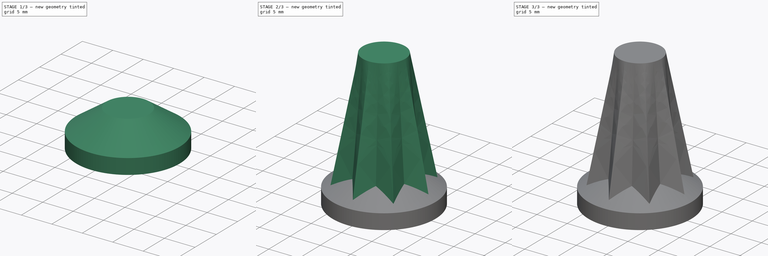
[diagram: build sequence overview — one tinted view per stage of 3, left to right]
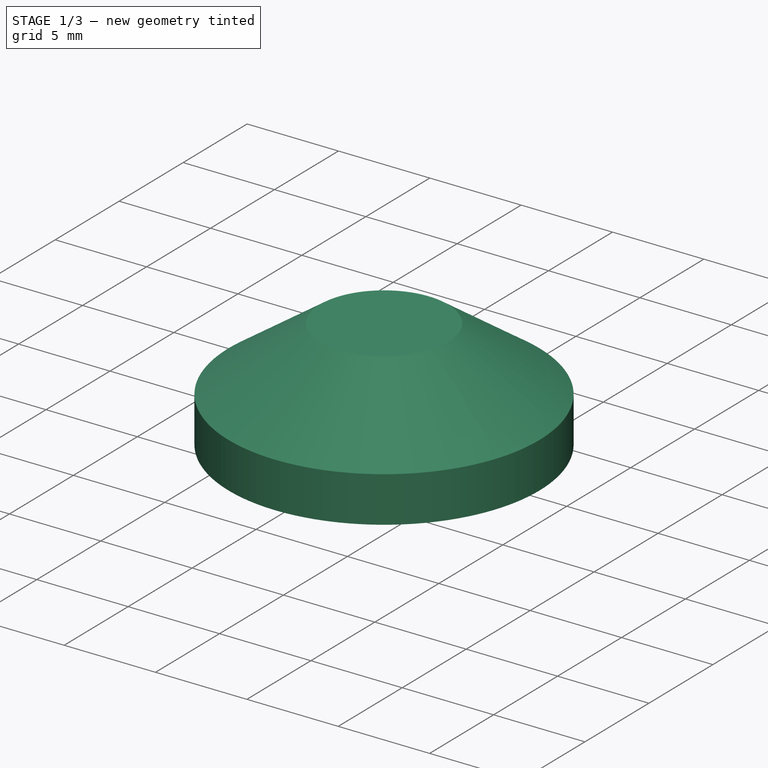
[diagram: stage 1 of 3 — iso view after this stage's code; geometry added in this stage tinted green]
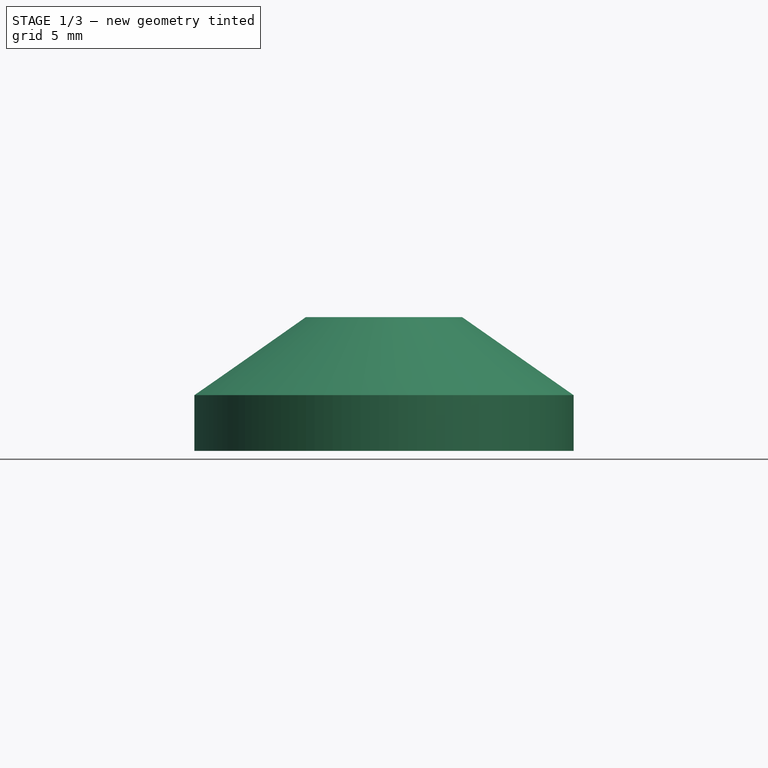
[diagram: stage 1 of 3 — front view after this stage's code; geometry added in this stage tinted green]
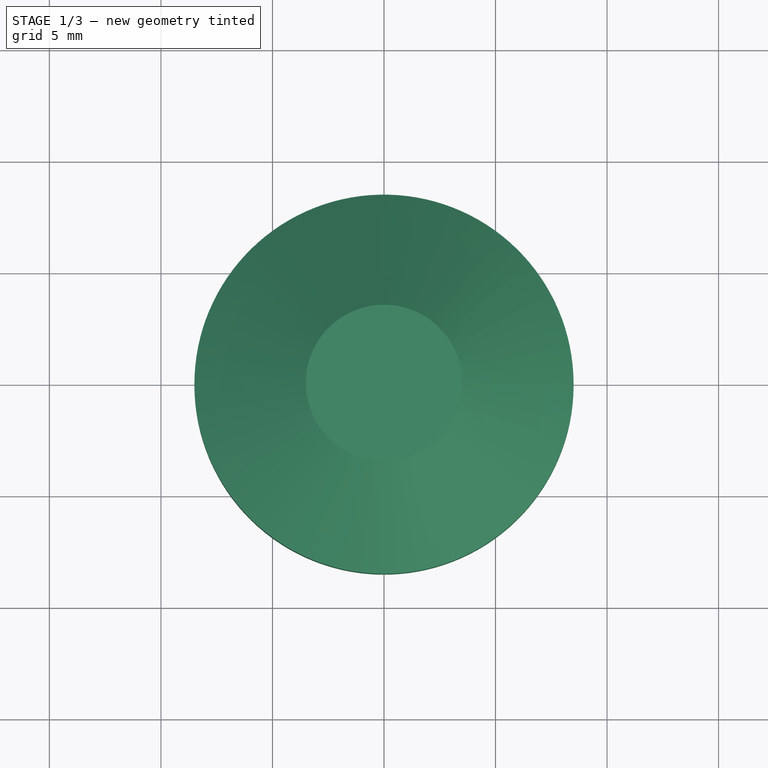
[diagram: stage 1 of 3 — top view after this stage's code; geometry added in this stage tinted green]
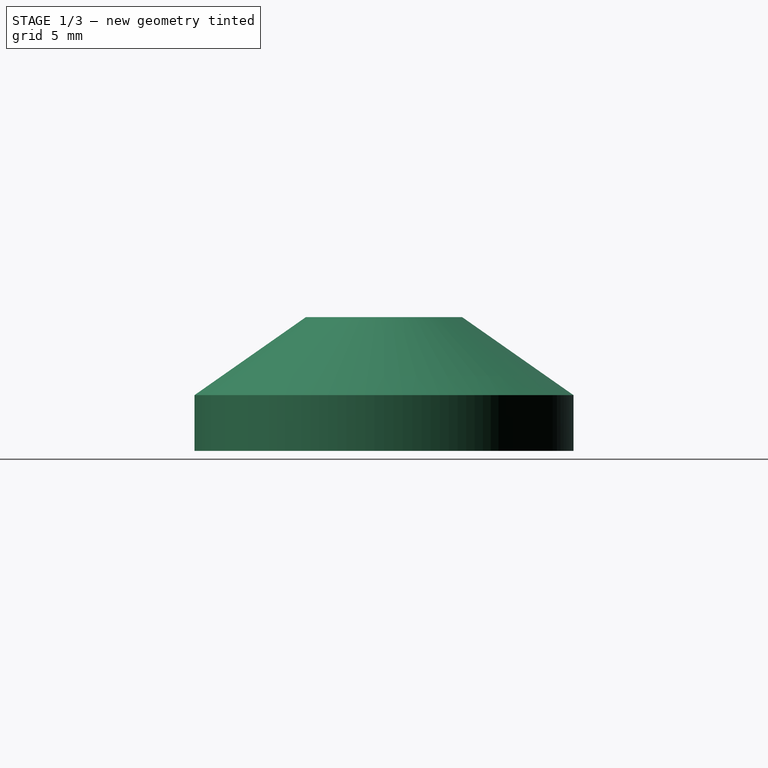
[diagram: stage 1 of 3 — right view after this stage's code; geometry added in this stage tinted green]
FCSTD DOCUMENT  (FreeCAD 1.0R39285 (Git))
Label: Knob
License: All rights reserved
LicenseURL: https://en.wikipedia.org/wiki/All_rights_reserved
objects: Sketcher::SketchObject×6, PartDesign::Pocket×3, Spreadsheet::Sheet×1, PartDesign::Plane×1, PartDesign::Pad×1, PartDesign::Chamfer×1, PartDesign::AdditiveLoft×1, PartDesign::Body×1
note: 32 computed .brp shape members not serialized (recipe doc carries the construction recipe); baked Part::Feature solids carry a one-line shape summary decoded from their .brp

FEATURE [Spreadsheet::Sheet] Parameters
  cells = A1='Parameter; B1='Value; C1='Fromula; D1='Tolerance; E1='Comment; A2='d0; B2(d0_)=11; C2='11mm; A3='d1; B3(d1_)=7; C3='7mm; A4='d10; B4(d10_)=0; C4='0°; A5='d11; B5(d11_)=0; C5='0; A6='d12; B6(d12_)=90; C6='90°; A7='d13; B7(d13_)=0; C7='0; A8='d14; B8(d14_)=90; C8='90°; A9='d15; B9(d15_)=6.2; C9='6.2mm; A10='d16; B10(d16_)=1.7; C10='1.7mm; A11='d17; B11(d17_)=20.5; C11='20.5mm; A12='d18; B12(d18_)=0; C12='0°; A13='OuterDiameter; B13(d19_)=17; C13='17mm; A14='d2; B14(d2_)=45; C14='45°; A15='d20; B15(d20_)=6; C15='6mm; A16='d21; B16(d21_)=0; C16='0°; A17='d22; B17(d22_)=3.52; C17='3.52mm; A18='d23; B18(d23_)=2; C18='2mm; A19='d24; B19(d24_)=35; C19='35°; A20='d25; B20(d25_)=12.7; C20='12.7mm; A21='d26; B21(d26_)=3; C21='3mm; A22='d27; B22(d27_)=0; C22='0°; A23='d28; B23(d28_)=6.1; C23='6.1mm; A24='d29; B24(d29_)=0; C24='0°; A25='d3; B25(d3_)=8; C25='8; A26='d4; B26(d4_)=8; C26='8; A27='d5; B27(d5_)=360; C27='360°; A28='d7; B28(d7_)=22.5; C28='22.5mm; A29='d8; B29(d8_)=7; C29='7mm; A30='d9; B30(d9_)=0.01; C30='0.01mm
FEATURE [Sketcher::SketchObject] Sketch1
  ArcFitTolerance = 1e-06
  AttachmentSupport = -> [XY_Plane]
  FullyConstrained = true
  MakeInternals = false
  MapMode = 5
  expr: .Constraints.d1 = (Parameters.d19_ - 1) / 2
  sketch-geometry (18):
    g0: LineSegment StartX=-2.10476 StartY=5.08134 StartZ=0 EndX=0 EndY=8 EndZ=0
    g1: LineSegment StartX=0 StartY=8 StartZ=0 EndX=2.10476 EndY=5.08134 EndZ=0
    g2: Circle [constr] CenterX=0 CenterY=0 CenterZ=0 NormalX=0 NormalY=0 NormalZ=1 AngleXU=0 Radius=5.5
    g3: LineSegment StartX=-5.08134 StartY=2.10476 StartZ=0 EndX=-5.65685 EndY=5.65685 EndZ=0
    g4: LineSegment StartX=-5.65685 StartY=5.65685 StartZ=0 EndX=-2.10476 EndY=5.08134 EndZ=0
    g5: LineSegment StartX=-5.08134 StartY=-2.10476 StartZ=0 EndX=-8 EndY=1.3e-15 EndZ=0
    g6: LineSegment StartX=-8 StartY=1.3e-15 StartZ=0 EndX=-5.08134 EndY=2.10476 EndZ=0
    g7: LineSegment StartX=-2.10476 StartY=-5.08134 StartZ=0 EndX=-5.65685 EndY=-5.65685 EndZ=0
    g8: LineSegment StartX=-5.65685 StartY=-5.65685 StartZ=0 EndX=-5.08134 EndY=-2.10476 EndZ=0
    g9: LineSegment StartX=2.10476 StartY=-5.08134 StartZ=0 EndX=-9e-16 EndY=-8 EndZ=0
    g10: LineSegment StartX=-9e-16 StartY=-8 StartZ=0 EndX=-2.10476 EndY=-5.08134 EndZ=0
    g11: LineSegment StartX=5.08134 StartY=-2.10476 StartZ=0 EndX=5.65685 EndY=-5.65685 EndZ=0
    g12: LineSegment StartX=5.65685 StartY=-5.65685 StartZ=0 EndX=2.10476 EndY=-5.08134 EndZ=0
    g13: LineSegment StartX=5.08134 StartY=2.10476 StartZ=0 EndX=8 EndY=-3.1e-15 EndZ=0
    g14: LineSegment StartX=8 StartY=-3.1e-15 StartZ=0 EndX=5.08134 EndY=-2.10476 EndZ=0
    g15: LineSegment StartX=2.10476 StartY=5.08134 StartZ=0 EndX=5.65685 EndY=5.65685 EndZ=0
    g16: LineSegment StartX=5.65685 StartY=5.65685 StartZ=0 EndX=5.08134 EndY=2.10476 EndZ=0
    g17: Circle [constr] CenterX=0 CenterY=0 CenterZ=0 NormalX=0 NormalY=0 NormalZ=1 AngleXU=0 Radius=8
  constraints (52):
    c: Equal(g1,g0)
    c: Diameter(g2) = 11  'd0'
    c: Distance(g-1,g0) = 8  'd1'
    c: Coincident(g2,g-1)
    c: PointOnObject(g0,g2)
    c: PointOnObject(g13,g2)
    c: PointOnObject(g11,g2)
    c: PointOnObject(g9,g2)
    c: PointOnObject(g7,g2)
    c: PointOnObject(g5,g2)
    c: PointOnObject(g3,g2)
    c: Coincident(g0,g1)
    c: PointOnObject(g1,g2)
    c: Coincident(g15,g1)
    c: Coincident(g15,g16)
    c: Coincident(g13,g16)
    c: Coincident(g14,g13)
    c: Coincident(g14,g11)
    c: Coincident(g11,g12)
    c: Coincident(g12,g9)
    c: Coincident(g10,g9)
    c: Coincident(g10,g7)
    c: Coincident(g7,g8)
    c: Coincident(g8,g5)
    c: Coincident(g5,g6)
    c: Coincident(g6,g3)
    c: Coincident(g3,g4)
    c: Coincident(g4,g0)
    c: Equal(g1,g15)
    c: Equal(g15,g16)
    c: Equal(g16,g13)
    c: Equal(g13,g14)
    c: Equal(g14,g11)
    c: Equal(g12,g9)
    c: Equal(g9,g10)
    c: Equal(g10,g7)
    c: Equal(g8,g7)
    c: Equal(g8,g5)
    c: Equal(g5,g6)
    c: Equal(g6,g3)
    c: Equal(g3,g4)
    c: Equal(g12,g11)
    c: Coincident(g17,g2)
    c: PointOnObject(g7,g17)
    c: PointOnObject(g5,g17)
    c: PointOnObject(g3,g17)
    c: PointOnObject(g0,g17)
    c: PointOnObject(g15,g17)
    c: PointOnObject(g13,g17)
    c: PointOnObject(g11,g17)
    c: PointOnObject(g9,g17)
    c: Vertical(g0,g2)
FEATURE [Sketcher::SketchObject] Sketch3
  ArcFitTolerance = 1e-06
  FullyConstrained = true
  MakeInternals = false
  Placement = pos=(0,0,0) rot=(0,1,0;3.14159rad)
  expr: .Constraints.d16 = Parameters.d16_
  sketch-geometry (2):
    g0: ArcOfCircle CenterX=0 CenterY=0 CenterZ=0 NormalX=0 NormalY=0 NormalZ=1 AngleXU=0 Radius=3.1 StartAngle=5.70275 EndAngle=10.0052
    g1: LineSegment StartX=2.5923 StartY=-1.7 StartZ=0 EndX=-2.5923 EndY=-1.7 EndZ=0
  constraints (6):
    c: Horizontal(g1)
    c: Distance(g-1,g1) = 1.7  'd16'
    c: Coincident(g0,g-1)
    c: Diameter(g0) = 6.2
    c: Coincident(g0,g1)
    c: Coincident(g0,g1)
FEATURE [Sketcher::SketchObject] Sketch5
  ArcFitTolerance = 1e-06
  FullyConstrained = true
  MakeInternals = false
  Placement = pos=(0,0,0) rot=(0,1,0;3.14159rad)
  sketch-geometry (1):
    g0: Circle CenterX=0 CenterY=0 CenterZ=0 NormalX=0 NormalY=0 NormalZ=1 AngleXU=0 Radius=6.35
  constraints (2):
    c: Diameter(g0) = 12.7
    c: Coincident(g0,g-1)
FEATURE [PartDesign::Plane] DatumPlane
  AttachmentOffset = pos=(0,0,22.5) rot=(0,0,1;0rad)
  AttachmentSupport = -> [Sketch1]
  Length = 60
  MapMode = 2
  Placement = pos=(0,0,22.5) rot=(0,0,1;0rad)
  ResizeMode = 0
  Width = 60
FEATURE [Sketcher::SketchObject] Sketch007
  ArcFitTolerance = 1e-06
  FullyConstrained = true
  MakeInternals = false
  Placement = pos=(0,0,22.5) rot=(0,0,1;0rad)
  sketch-geometry (1):
    g0: Circle CenterX=0 CenterY=0 CenterZ=0 NormalX=0 NormalY=0 NormalZ=1 AngleXU=0 Radius=3.5
  constraints (2):
    c: Diameter(g0) = 7  'd8'
    c: Coincident(g0,g-1)
FEATURE [Sketcher::SketchObject] Sketch
  ArcFitTolerance = 1e-06
  AttachmentSupport = -> [XY_Plane]
  FullyConstrained = true
  MakeInternals = false
  MapMode = 5
  expr: Constraints[1] = Parameters.d19_
  sketch-geometry (1):
    g0: Circle CenterX=0 CenterY=0 CenterZ=0 NormalX=0 NormalY=0 NormalZ=1 AngleXU=0 Radius=8.5
  constraints (2):
    c: Coincident(g0,g-1)
    c: Diameter(g0) = 17
FEATURE [PartDesign::Pad] Pad001
  Direction = (0,0,1)
  Length = 6
  Length2 = 10
  Profile = -> Sketch
  ReferenceAxis = -> Sketch [N_Axis]
  Refine = true
  Suppressed = false
  Type = 0
FEATURE [PartDesign::Chamfer] Chamfer
  Angle = 55
  Base = -> Pad001 [Edge3]
  BaseFeature = -> Pad001
  ChamferType = 2
  FlipDirection = false
  Refine = true
  Size = 3.5
  Size2 = 1
  SupportTransform = false
  Suppressed = false
  UseAllEdges = false
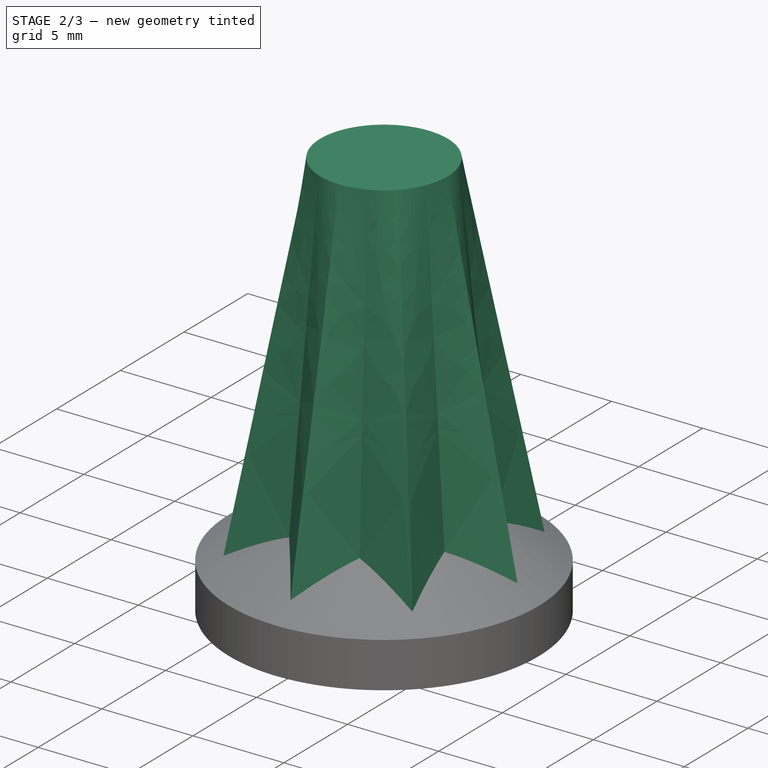
[diagram: stage 2 of 3 — iso view after this stage's code; geometry added in this stage tinted green]
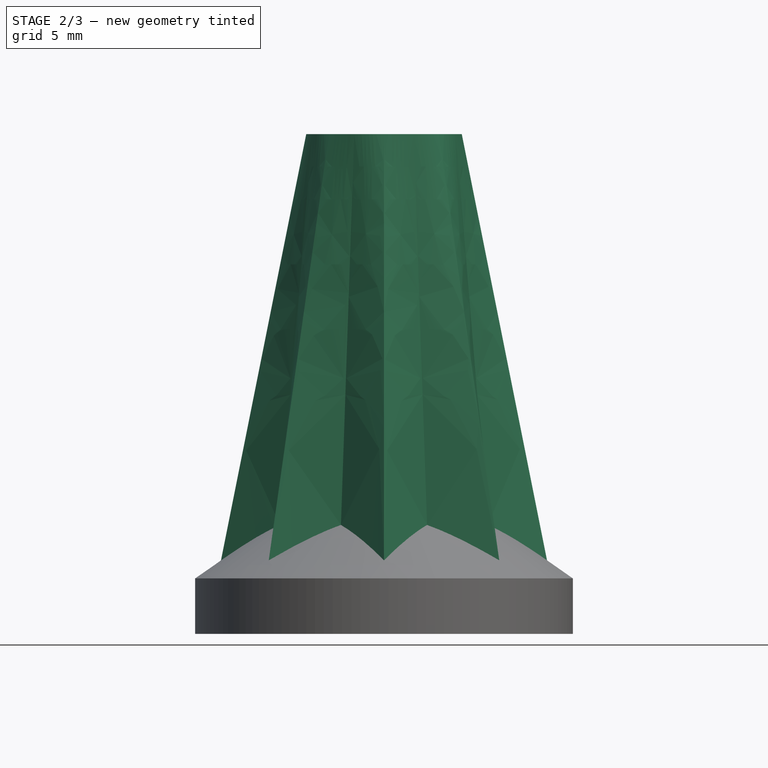
[diagram: stage 2 of 3 — front view after this stage's code; geometry added in this stage tinted green]
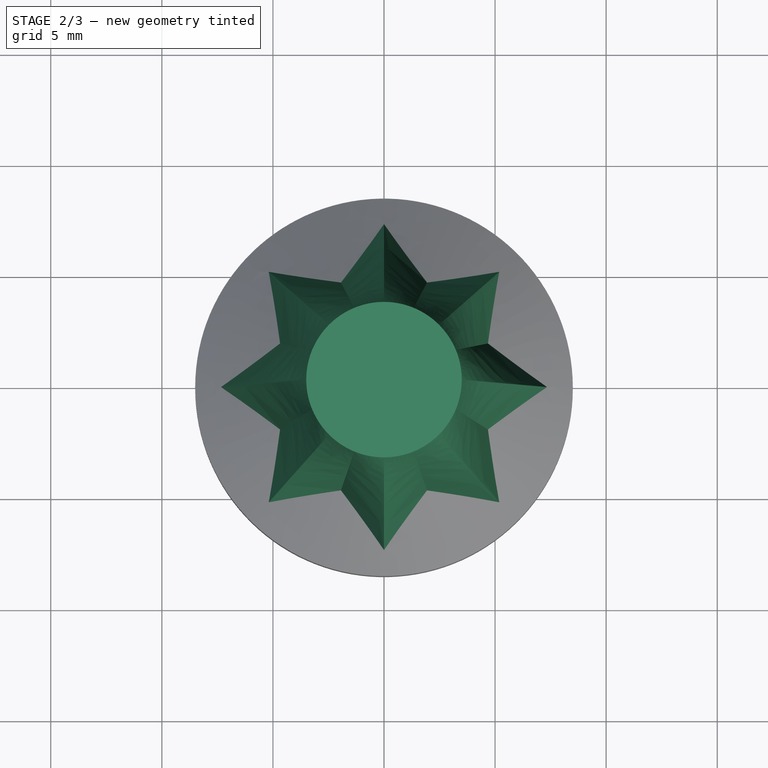
[diagram: stage 2 of 3 — top view after this stage's code; geometry added in this stage tinted green]
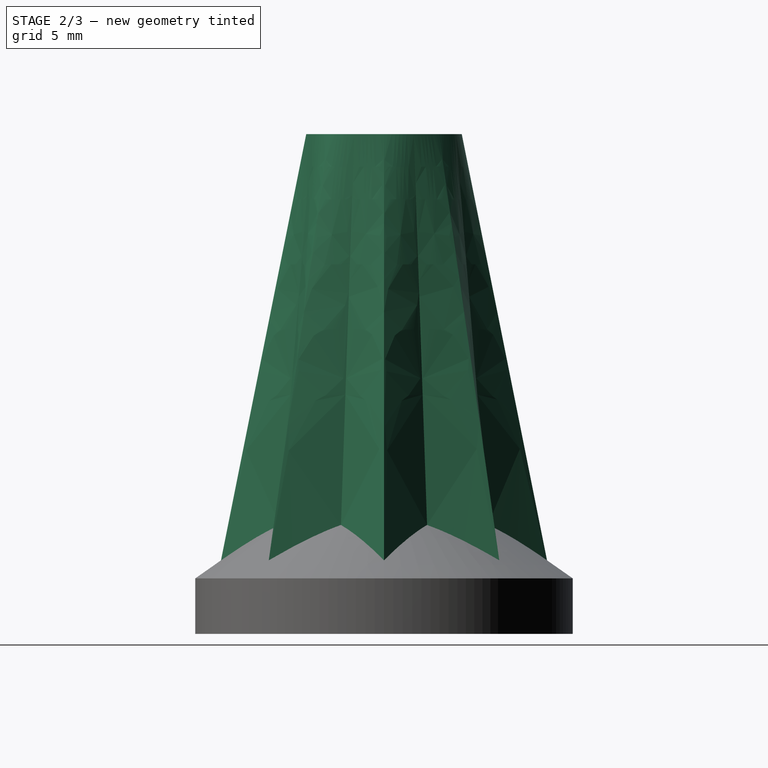
[diagram: stage 2 of 3 — right view after this stage's code; geometry added in this stage tinted green]
FEATURE [PartDesign::AdditiveLoft] AdditiveLoft
  BaseFeature = -> Chamfer
  Closed = false
  Profile = -> Sketch1
  Refine = true
  Ruled = false
  Sections = -> [Sketch007]
  Suppressed = false
FEATURE [PartDesign::Pocket] Pocket
  BaseFeature = -> AdditiveLoft
  Direction = (0,0,1)
  Length = 20.5
  Length2 = 5
  Profile = -> Sketch3
  ReferenceAxis = -> Sketch3 [N_Axis]
  Refine = true
  Suppressed = false
  Type = 0
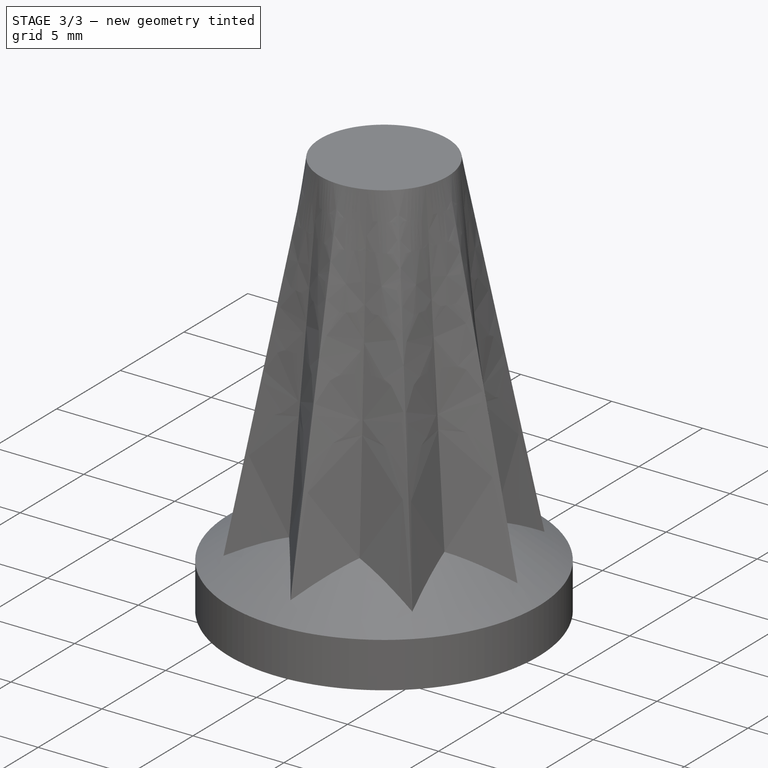
[diagram: stage 3 of 3 — iso view after this stage's code; geometry added in this stage tinted green]
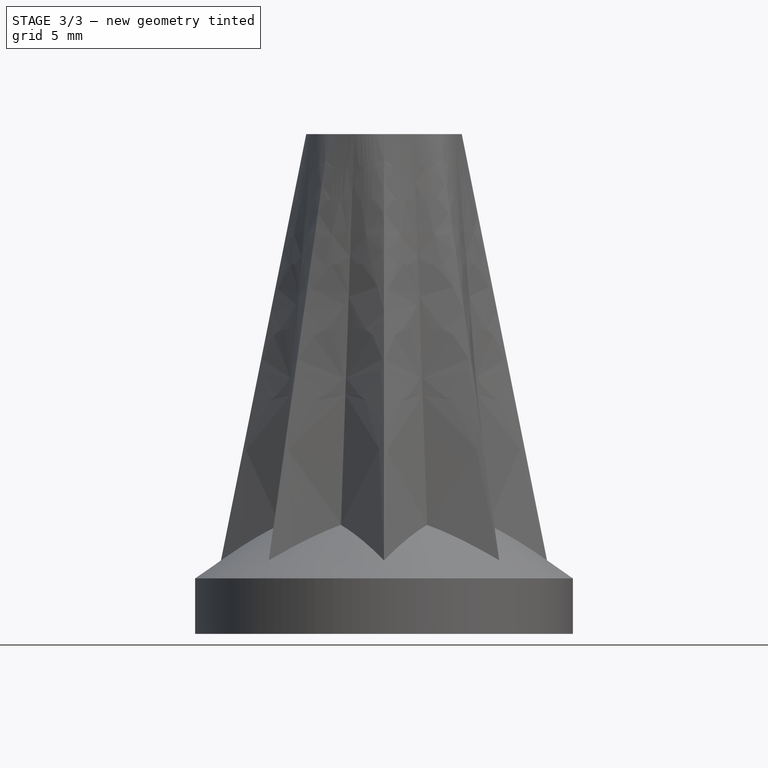
[diagram: stage 3 of 3 — front view after this stage's code; geometry added in this stage tinted green]
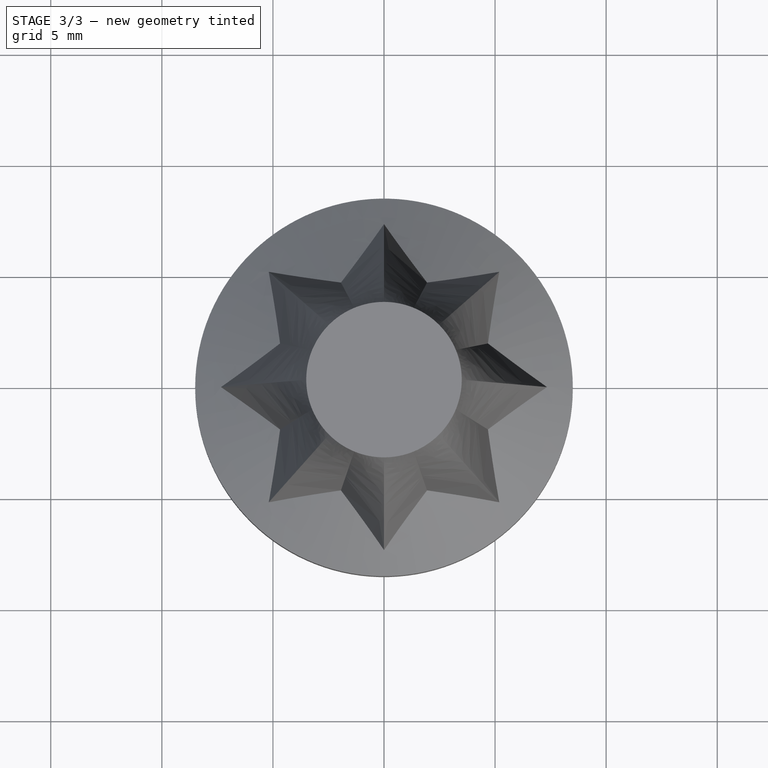
[diagram: stage 3 of 3 — top view after this stage's code; geometry added in this stage tinted green]
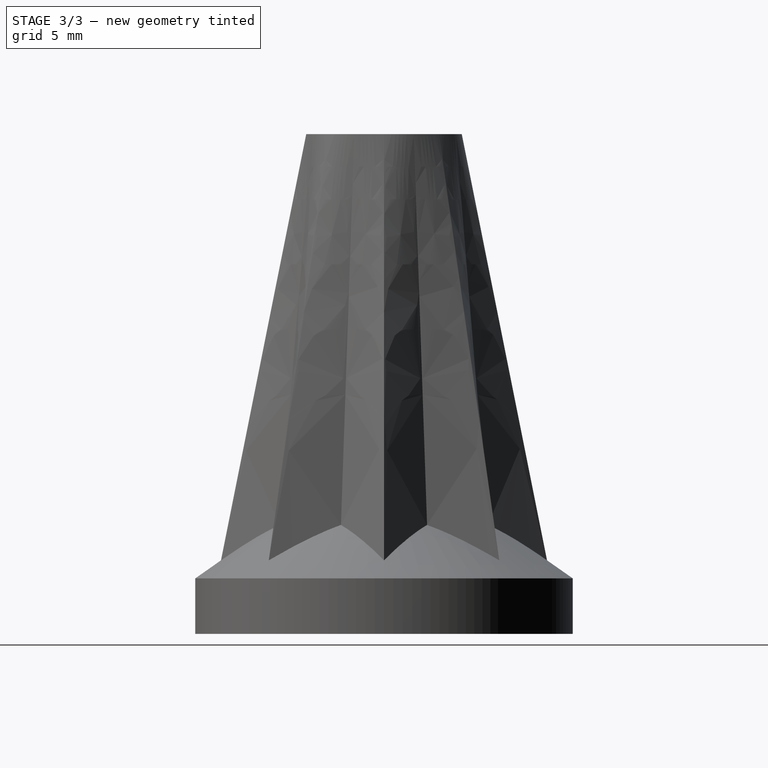
[diagram: stage 3 of 3 — right view after this stage's code; geometry added in this stage tinted green]
FEATURE [PartDesign::Pocket] Pocket001
  BaseFeature = -> Pocket
  Direction = (0,0,1)
  Length = 3
  Length2 = 5
  Profile = -> Sketch5
  ReferenceAxis = -> Sketch5 [N_Axis]
  Refine = true
  Suppressed = false
  Type = 0
FEATURE [Sketcher::SketchObject] Sketch6
  ArcFitTolerance = 1e-06
  ExternalGeometry = -> [Pocket001]
  FullyConstrained = true
  MakeInternals = false
  Placement = pos=(0,0,3) rot=(0,1,0;3.14159rad)
  sketch-geometry (1):
    g0: Circle CenterX=0 CenterY=0 CenterZ=0 NormalX=0 NormalY=0 NormalZ=1 AngleXU=0 Radius=3.1
  constraints (2):
    c: Coincident(g0,g-1)
    c: PointOnObject(g-3,g0)
FEATURE [PartDesign::Pocket] Pocket002
  BaseFeature = -> Pocket001
  Direction = (0,0,1)
  Length = 6.1
  Length2 = 5
  Profile = -> Sketch6
  ReferenceAxis = -> Sketch6 [N_Axis]
  Refine = true
  Suppressed = false
  Type = 0
FEATURE [PartDesign::Body] Body  label="Körper"
  AllowCompound = false
  Group = -> [Pad001,Sketch,Sketch1,DatumPlane,Sketch007,Chamfer,AdditiveLoft,Sketch3,Pocket,Sketch5,Pocket001,Sketch6,Pocket002]
  Origin = -> Origin
  Tip = -> Pocket002
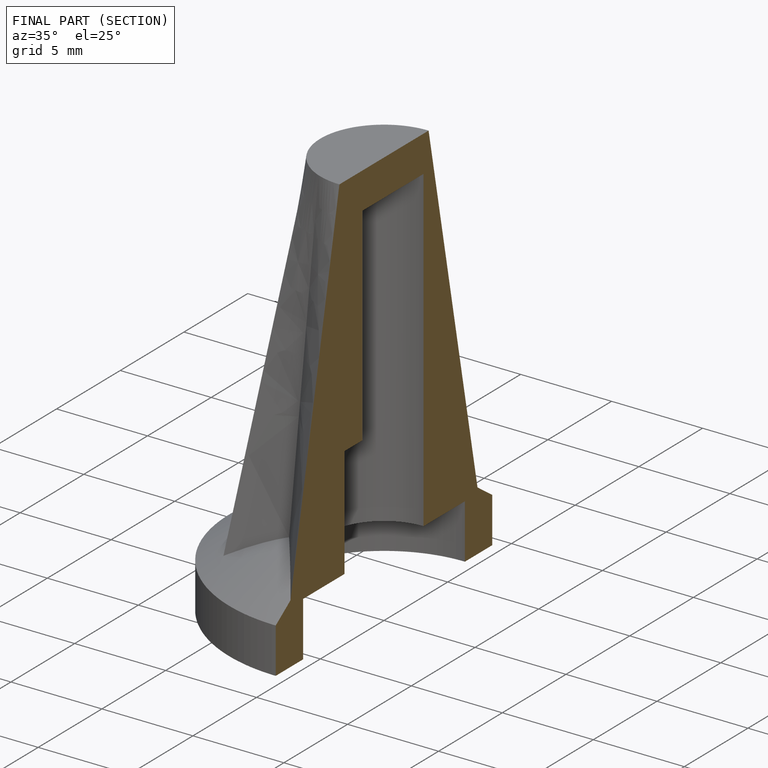
[diagram: finished part — half-section view (interior)]
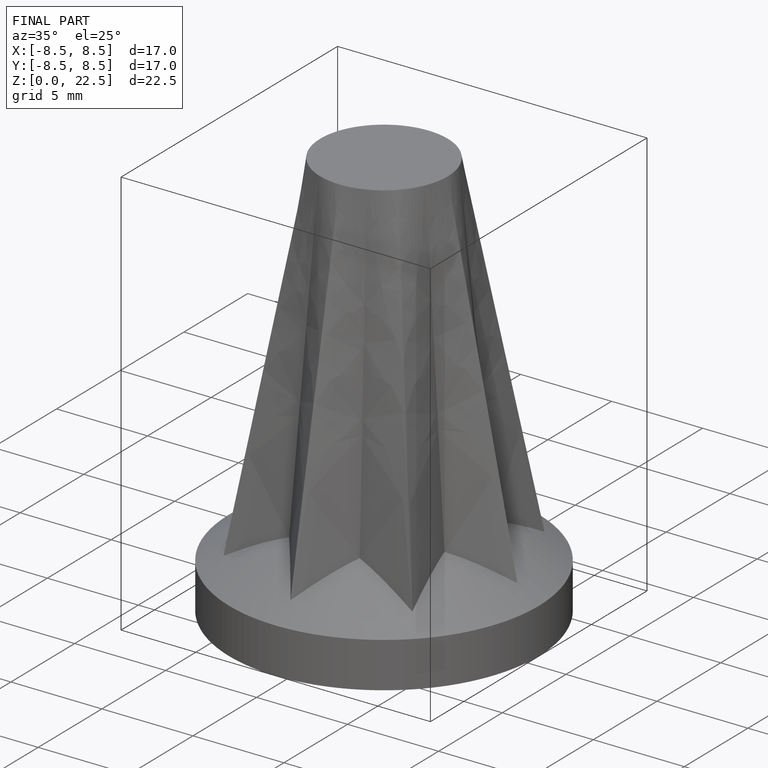
[diagram: finished part — iso view with bounding-box wireframe]
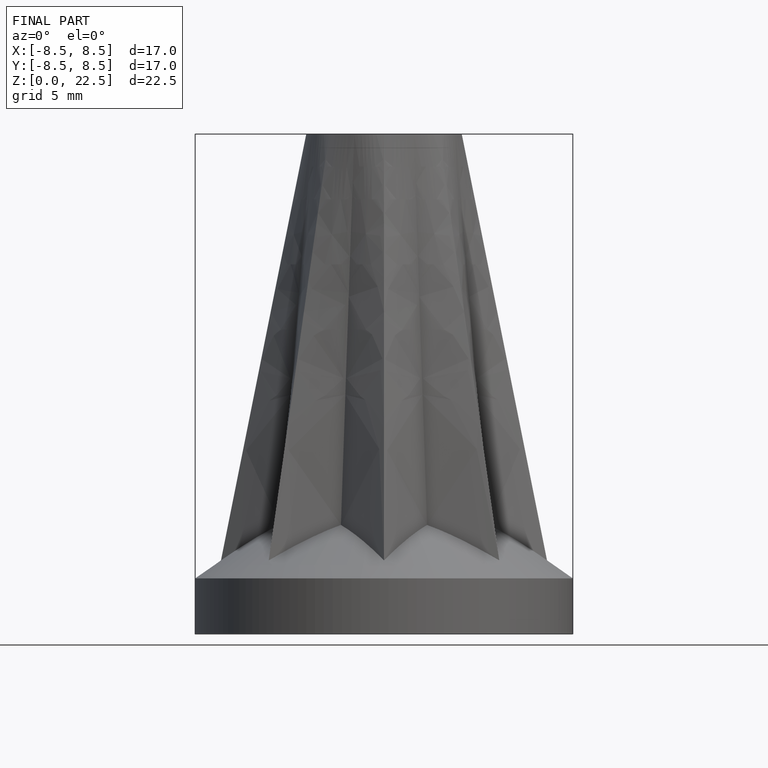
[diagram: finished part — front view with bounding-box wireframe]
